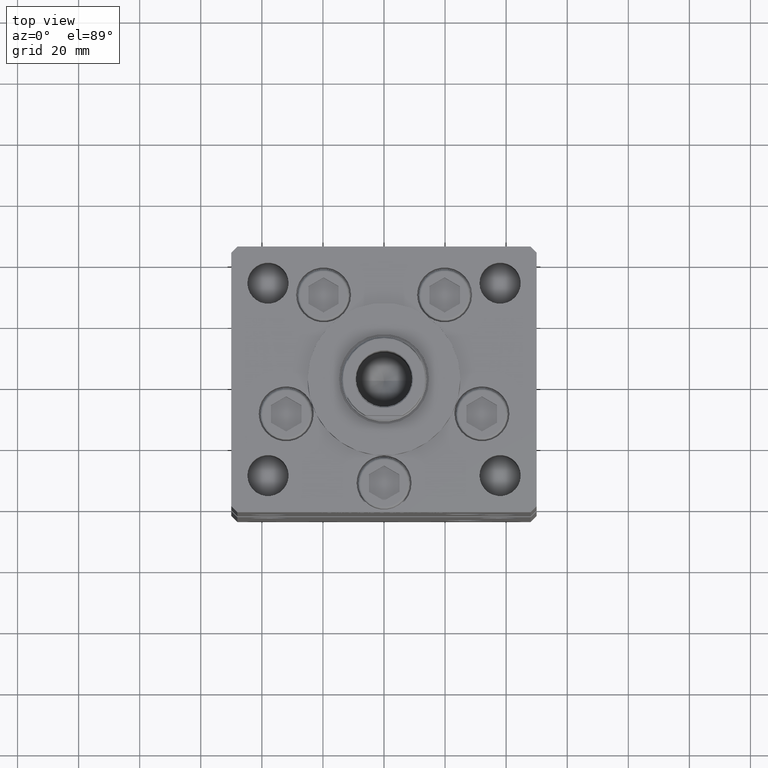
[diagram: clean part render]
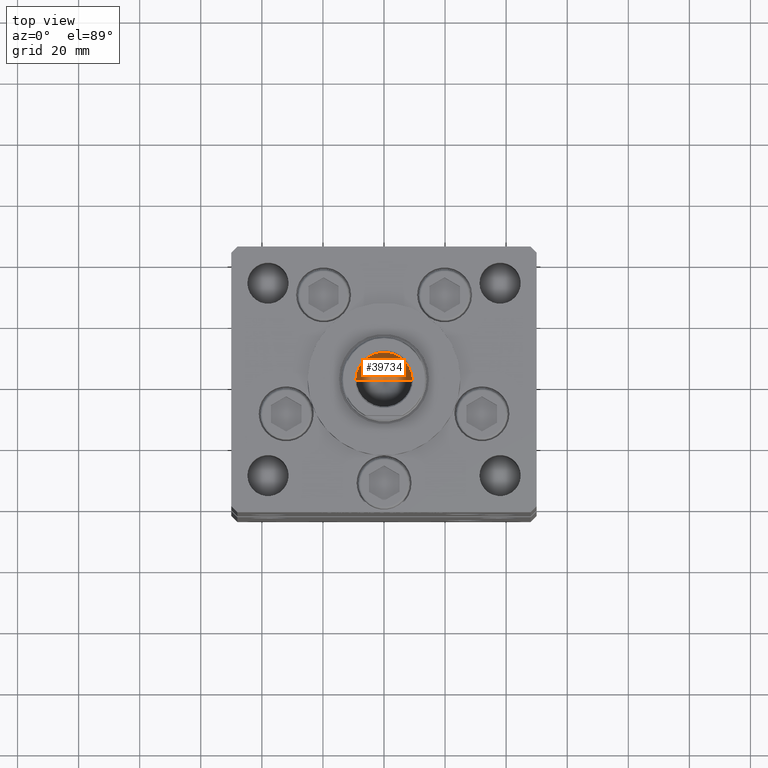
[diagram: same view with one face highlighted and labeled with its STEP entity id]
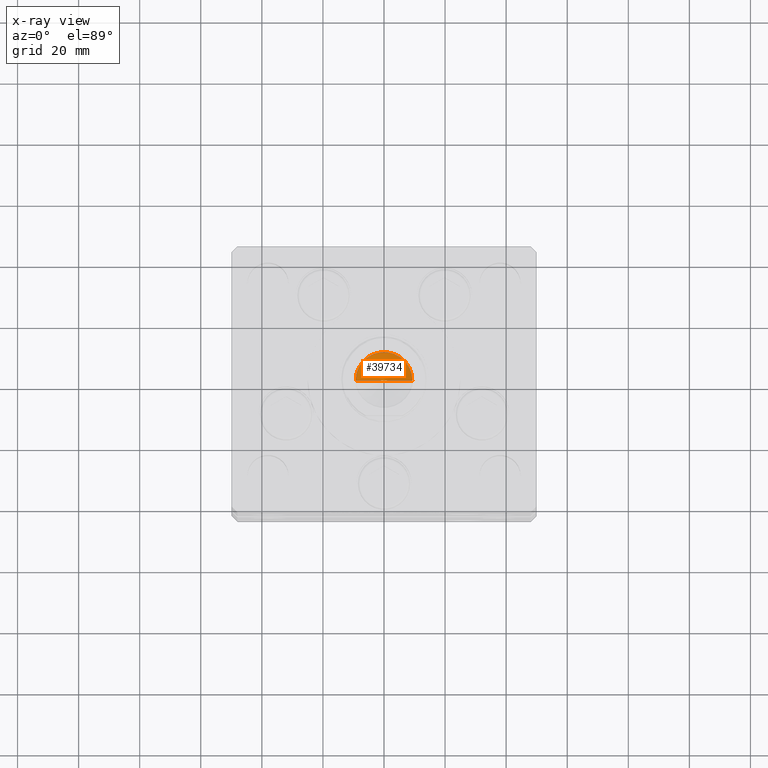
[diagram: x-ray of the same camera — body ghosted, the highlighted face saturated]
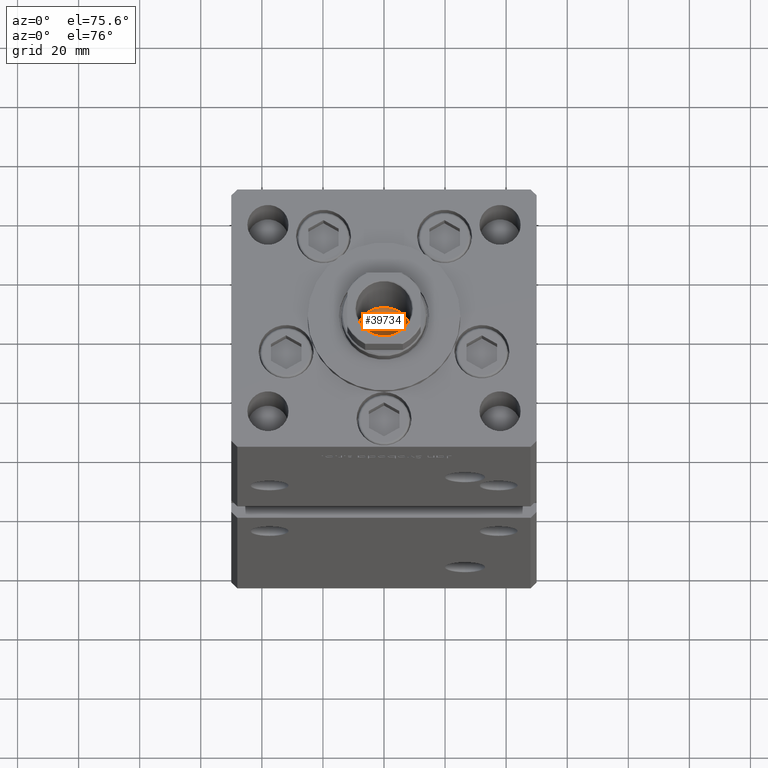
[diagram: same view with one face highlighted and labeled with its STEP entity id]
A machine part, top view. The second image highlights one B-rep face of the part: STEP entity #39734.
The next image is the same camera in x-ray: the body ghosted, the highlighted face saturated — about 0% of this face is hidden behind the body in this view.
A second angle (auxiliary view) of the same face is appended — the face is thin or edge-on in the first view.
In plain terms, the highlighted conical surface has half-angle 59 deg.
Its self-contained STEP definition (entity closure, byte-faithful):
#3137 = DIRECTION ( 'NONE',  ( -0.000000000000000000, -0.000000000000000000, 1.000000000000000000 ) ) ;
#9055 = LINE ( 'NONE', #29743, #31346 ) ;
#9077 = DIRECTION ( 'NONE',  ( -0.000000000000000000, -0.000000000000000000, 1.000000000000000000 ) ) ;
#16709 = CARTESIAN_POINT ( 'NONE',  ( 9.249999999999994671, 0.000000000000000000, 130.2500000000000000 ) ) ;
#18085 = EDGE_CURVE ( 'NONE', #36692, #50370, #9055, .T. ) ;
#18653 = CIRCLE ( 'NONE', #43571, 9.249999999999994671 ) ;
#21543 = ORIENTED_EDGE ( 'NONE', *, *, #39947, .T. ) ;
#23807 = AXIS2_PLACEMENT_3D ( 'NONE', #25215, #9077, #49673 ) ;
#24128 = CARTESIAN_POINT ( 'NONE',  ( -9.249999999999994671, 1.132798289211300909E-15, 130.2500000000000000 ) ) ;
#24687 = FACE_OUTER_BOUND ( 'NONE', #27163, .T. ) ;
#25215 = CARTESIAN_POINT ( 'NONE',  ( 0.000000000000000000, 0.000000000000000000, 130.2500000000000000 ) ) ;
#27163 = EDGE_LOOP ( 'NONE', ( #41112, #29961, #21543 ) ) ;
#27334 = DIRECTION ( 'NONE',  ( 1.000000000000000000, 0.000000000000000000, 0.000000000000000000 ) ) ;
#28955 = DIRECTION ( 'NONE',  ( 0.8571673007021117785, 0.000000000000000000, 0.5150380749100550437 ) ) ;
#29743 = CARTESIAN_POINT ( 'NONE',  ( 9.249999999999994671, 0.000000000000000000, 130.2500000000000000 ) ) ;
#29961 = ORIENTED_EDGE ( 'NONE', *, *, #18085, .T. ) ;
#31346 = VECTOR ( 'NONE', #28955, 1000.000000000000000 ) ;
#31605 = VERTEX_POINT ( 'NONE', #24128 ) ;
#32174 = CARTESIAN_POINT ( 'NONE',  ( 0.000000000000000000, 0.000000000000000000, 130.2500000000000000 ) ) ;
#36692 = VERTEX_POINT ( 'NONE', #39827 ) ;
#39734 = ADVANCED_FACE ( 'NONE', ( #24687 ), #46137, .F. ) ;
#39827 = CARTESIAN_POINT ( 'NONE',  ( -1.046994375366439223E-14, 0.000000000000000000, 124.6920392739950643 ) ) ;
#39947 = EDGE_CURVE ( 'NONE', #50370, #31605, #18653, .T. ) ;
#41112 = ORIENTED_EDGE ( 'NONE', *, *, #46393, .F. ) ;
#43571 = AXIS2_PLACEMENT_3D ( 'NONE', #32174, #3137, #27334 ) ;
#44574 = LINE ( 'NONE', #47824, #53182 ) ;
#44841 = DIRECTION ( 'NONE',  ( -0.8571673007021117785, 1.049727191138617956E-16, 0.5150380749100550437 ) ) ;
#46137 = CONICAL_SURFACE ( 'NONE', #23807, 9.249999999999994671, 1.029744258676653423 ) ;
#46393 = EDGE_CURVE ( 'NONE', #36692, #31605, #44574, .T. ) ;
#47824 = CARTESIAN_POINT ( 'NONE',  ( -9.249999999999994671, 1.132798289211300909E-15, 130.2500000000000000 ) ) ;
#49673 = DIRECTION ( 'NONE',  ( 1.000000000000000000, 0.000000000000000000, 0.000000000000000000 ) ) ;
#50370 = VERTEX_POINT ( 'NONE', #16709 ) ;
#53182 = VECTOR ( 'NONE', #44841, 1000.000000000000000 ) ;